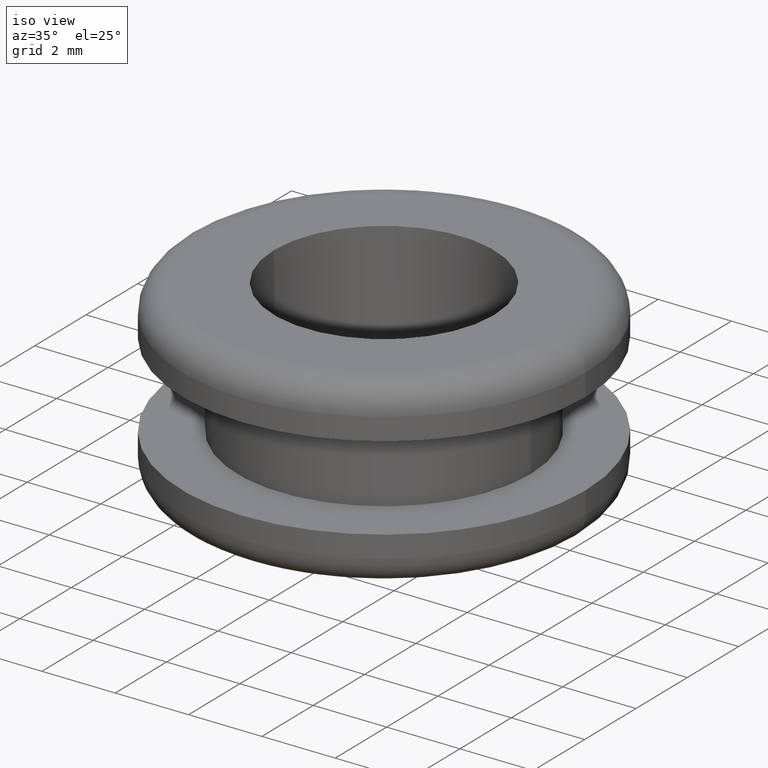
[diagram: clean part render]
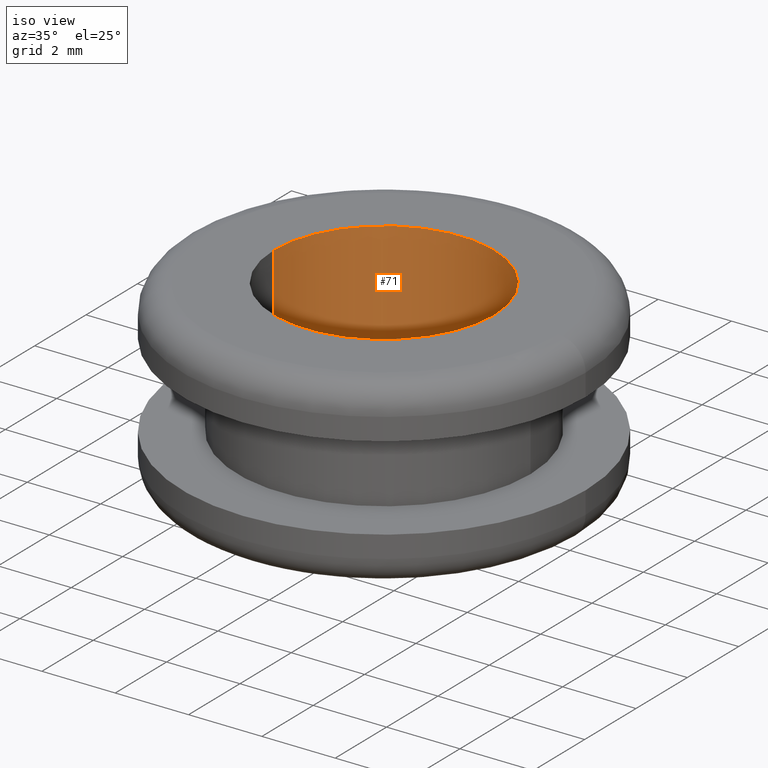
[diagram: same view with one face highlighted and labeled with its STEP entity id]
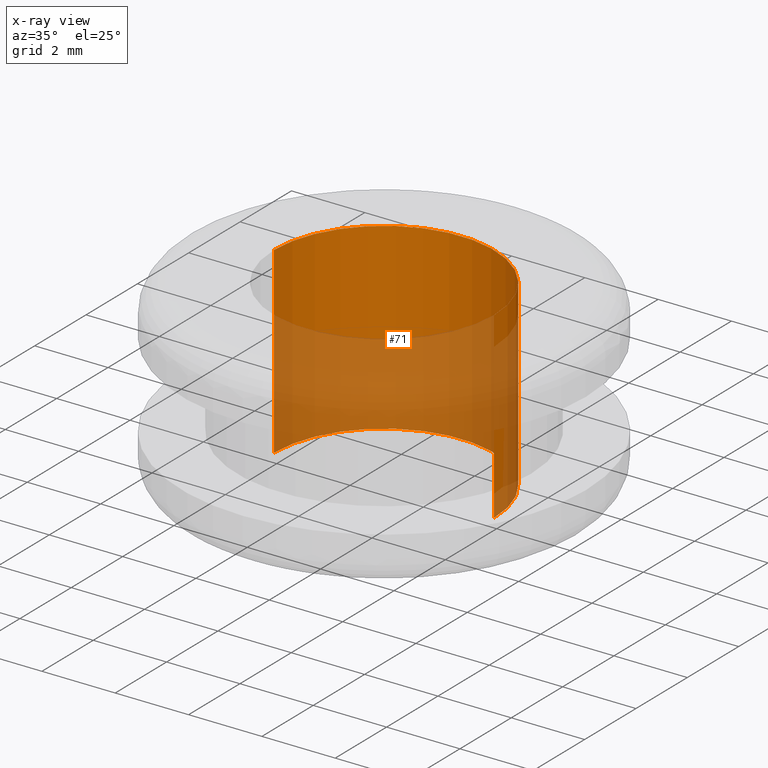
[diagram: x-ray of the same camera — body ghosted, the highlighted face saturated]
A machine part, iso view. The second image highlights one B-rep face of the part: STEP entity #71.
The next image is the same camera in x-ray: the body ghosted, the highlighted face saturated — about 52% of this face is hidden behind the body in this view.
In plain terms, the highlighted cylindrical surface (partial cylindrical patch) has radius 3 mm, axis along (0, 0, -1).
Its self-contained STEP definition (entity closure, byte-faithful):
#12 = ORIENTED_EDGE ( 'NONE', *, *, #333, .F. ) ;
#22 = VERTEX_POINT ( 'NONE', #210 ) ;
#31 = CARTESIAN_POINT ( 'NONE',  ( 105.9281270166740100, 0.0000000000000000000, 0.0000000000000000000 ) ) ;
#35 = EDGE_LOOP ( 'NONE', ( #61, #12, #157, #217 ) ) ;
#48 = EDGE_CURVE ( 'NONE', #389, #456, #256, .T. ) ;
#49 = DIRECTION ( 'NONE',  ( 0.0000000000000000000, 0.0000000000000000000, -1.000000000000000000 ) ) ;
#58 = CARTESIAN_POINT ( 'NONE',  ( 108.9281270167014100, 0.0000000000000000000, 138.5834774696089900 ) ) ;
#61 = ORIENTED_EDGE ( 'NONE', *, *, #48, .F. ) ;
#62 = AXIS2_PLACEMENT_3D ( 'NONE', #129, #49, #463 ) ;
#67 = EDGE_CURVE ( 'NONE', #22, #369, #70, .T. ) ;
#70 = LINE ( 'NONE', #31, #248 ) ;
#71 = ADVANCED_FACE ( 'NONE', ( #349 ), #338, .F. ) ;
#129 = CARTESIAN_POINT ( 'NONE',  ( 108.9281270167014100, 0.0000000000000000000, 133.5834774696090200 ) ) ;
#130 = CARTESIAN_POINT ( 'NONE',  ( 108.9281270167014100, 0.0000000000000000000, 0.0000000000000000000 ) ) ;
#157 = ORIENTED_EDGE ( 'NONE', *, *, #67, .T. ) ;
#210 = CARTESIAN_POINT ( 'NONE',  ( 105.9281270166740100, 0.0000000000000000000, 138.5834774696089900 ) ) ;
#217 = ORIENTED_EDGE ( 'NONE', *, *, #375, .T. ) ;
#237 = CARTESIAN_POINT ( 'NONE',  ( 111.9281270167287900, 3.673940397475615100E-016, 0.0000000000000000000 ) ) ;
#246 = DIRECTION ( 'NONE',  ( -1.000000000000000000, 0.0000000000000000000, 0.0000000000000000000 ) ) ;
#248 = VECTOR ( 'NONE', #275, 1000.000000000000000 ) ;
#256 = LINE ( 'NONE', #237, #454 ) ;
#270 = CARTESIAN_POINT ( 'NONE',  ( 105.9281270166740100, 0.0000000000000000000, 133.5834774696090200 ) ) ;
#272 = DIRECTION ( 'NONE',  ( -1.000000000000000000, 0.0000000000000000000, 0.0000000000000000000 ) ) ;
#275 = DIRECTION ( 'NONE',  ( 0.0000000000000000000, 0.0000000000000000000, -1.000000000000000000 ) ) ;
#315 = DIRECTION ( 'NONE',  ( 0.0000000000000000000, 0.0000000000000000000, -1.000000000000000000 ) ) ;
#333 = EDGE_CURVE ( 'NONE', #22, #389, #458, .T. ) ;
#338 = CYLINDRICAL_SURFACE ( 'NONE', #420, 3.000000000027397600 ) ;
#349 = FACE_OUTER_BOUND ( 'NONE', #35, .T. ) ;
#359 = CIRCLE ( 'NONE', #62, 3.000000000027397600 ) ;
#369 = VERTEX_POINT ( 'NONE', #270 ) ;
#375 = EDGE_CURVE ( 'NONE', #369, #456, #359, .T. ) ;
#384 = CARTESIAN_POINT ( 'NONE',  ( 111.9281270167287900, 3.673940397475618500E-016, 133.5834774696090200 ) ) ;
#389 = VERTEX_POINT ( 'NONE', #415 ) ;
#415 = CARTESIAN_POINT ( 'NONE',  ( 111.9281270167287900, 3.673940397475618500E-016, 138.5834774696089900 ) ) ;
#420 = AXIS2_PLACEMENT_3D ( 'NONE', #130, #461, #272 ) ;
#422 = DIRECTION ( 'NONE',  ( 0.0000000000000000000, 0.0000000000000000000, -1.000000000000000000 ) ) ;
#451 = AXIS2_PLACEMENT_3D ( 'NONE', #58, #422, #246 ) ;
#454 = VECTOR ( 'NONE', #315, 1000.000000000000000 ) ;
#456 = VERTEX_POINT ( 'NONE', #384 ) ;
#458 = CIRCLE ( 'NONE', #451, 3.000000000027397600 ) ;
#461 = DIRECTION ( 'NONE',  ( 0.0000000000000000000, 0.0000000000000000000, -1.000000000000000000 ) ) ;
#463 = DIRECTION ( 'NONE',  ( -1.000000000000000000, 0.0000000000000000000, 0.0000000000000000000 ) ) ;